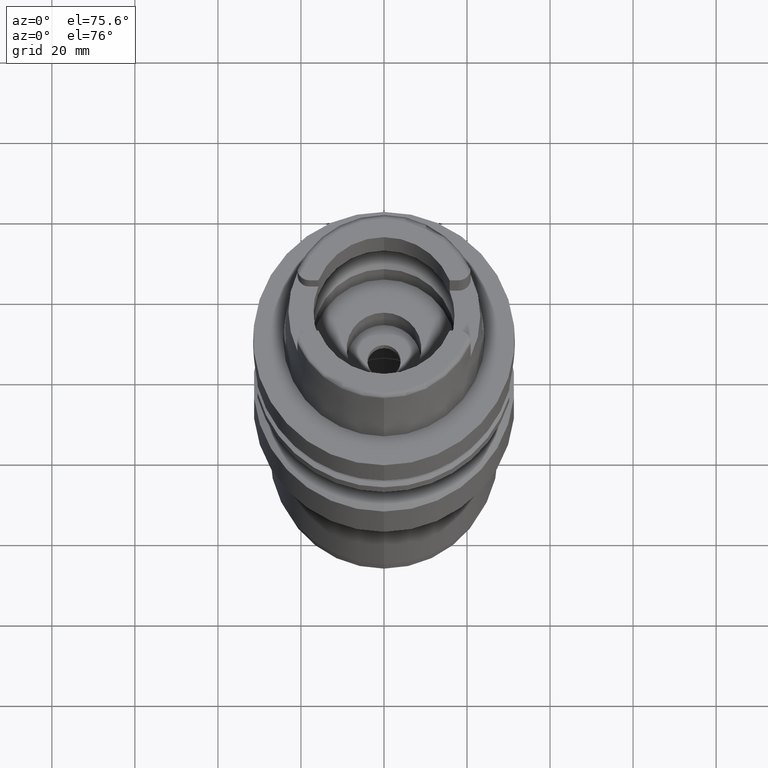
[diagram: clean part render]
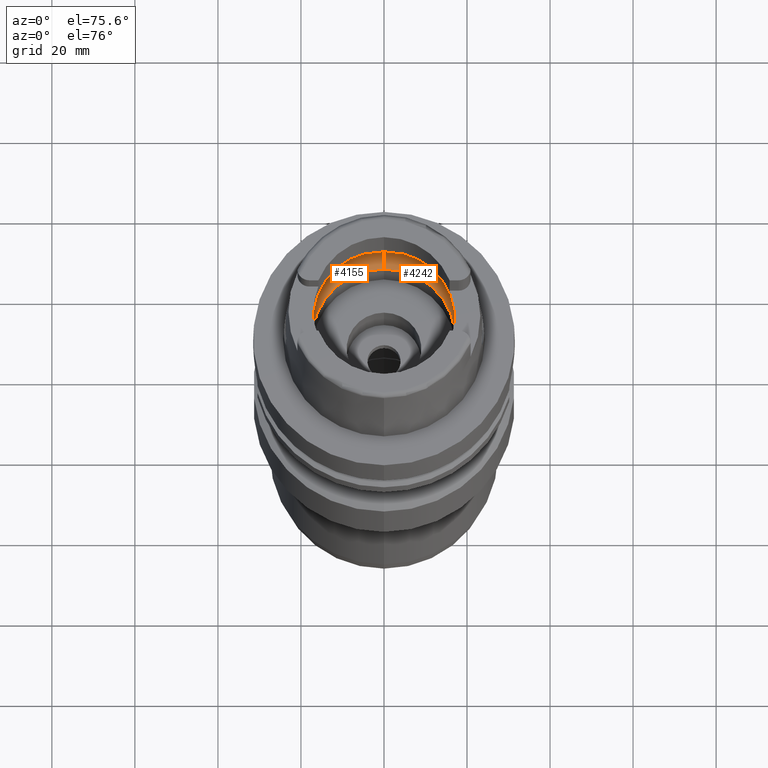
[diagram: same view with one multi-face feature highlighted, each face labeled with its STEP entity id]
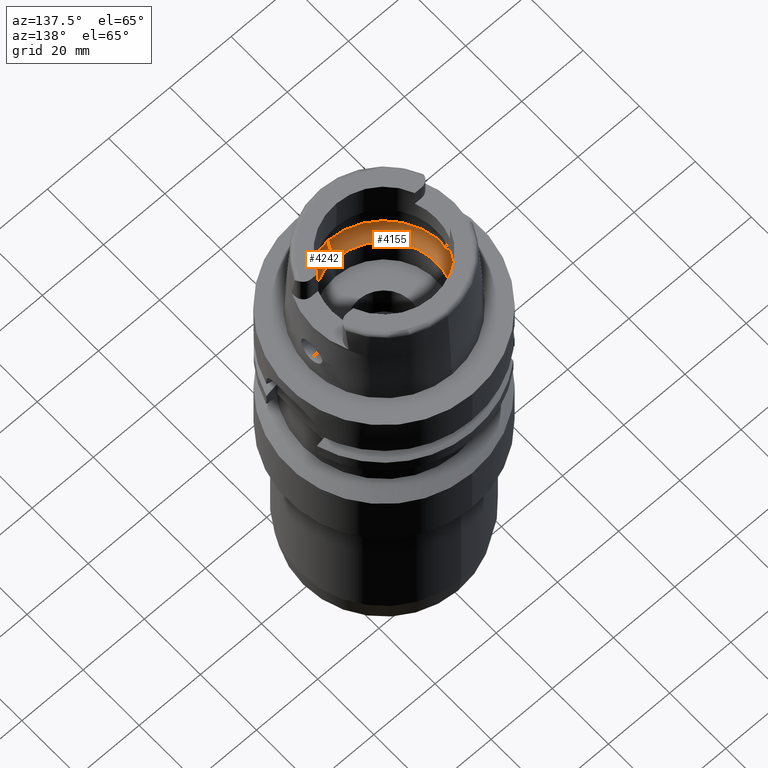
[diagram: same view with one multi-face feature highlighted, each face labeled with its STEP entity id]
A machine part, auxiliary view. The highlighted faces form ONE feature: a constant-radius fillet chain: 2 tangent blend faces with common blend radius 8 mm. The faces share edges in the B-rep.
A second angle (auxiliary view) of the same feature is appended — it is thin or edge-on in the first view.
Their STEP definitions:
[1] entity #4242 (Torus):
#2088=CARTESIAN_POINT('',(0.E0,-1.2E1,6.186348233825E0));
#2089=DIRECTION('',(-1.E0,0.E0,0.E0));
#2090=DIRECTION('',(0.E0,-6.5625E-1,-7.545435292281E-1));
#2091=AXIS2_PLACEMENT_3D('',#2088,#2089,#2090);
#2150=CARTESIAN_POINT('',(1.984575864666E1,-2.479085262490E0,6.186348233825E0));
#2177=CARTESIAN_POINT('',(1.984575864666E1,2.479085262491E0,6.186348233825E0));
#2196=CARTESIAN_POINT('',(1.994501428476E1,0.E0,5.25E0));
#2197=CARTESIAN_POINT('',(1.994501428476E1,-3.022957634976E-1,5.25E0));
#2198=CARTESIAN_POINT('',(1.994018609231E1,-9.060475314815E-1,
5.323296491821E0));
#2199=CARTESIAN_POINT('',(1.991331551588E1,-1.759138835860E0,5.647061009448E0));
#2200=CARTESIAN_POINT('',(1.987369612173E1,-2.255438098809E0,5.989294570630E0));
#2201=CARTESIAN_POINT('',(1.984575864666E1,-2.479085262490E0,6.186348233825E0));
#2206=CARTESIAN_POINT('',(0.E0,1.300407714777E-14,6.186348233825E0));
#2207=DIRECTION('',(0.E0,0.E0,-1.E0));
#2208=DIRECTION('',(9.922879323328E-1,-1.239542631245E-1,0.E0));
#2209=AXIS2_PLACEMENT_3D('',#2206,#2207,#2208);
#2214=CARTESIAN_POINT('',(0.E0,1.300407714777E-14,1.500000000001E-1));
#2215=DIRECTION('',(0.E0,0.E0,1.E0));
#2216=DIRECTION('',(0.E0,-1.E0,0.E0));
#2217=AXIS2_PLACEMENT_3D('',#2214,#2215,#2216);
#2222=CARTESIAN_POINT('',(0.E0,1.2E1,6.186348233825E0));
#2223=DIRECTION('',(1.E0,0.E0,0.E0));
#2224=DIRECTION('',(0.E0,6.5625E-1,-7.545435292281E-1));
#2225=AXIS2_PLACEMENT_3D('',#2222,#2223,#2224);
#2230=CARTESIAN_POINT('',(0.E0,1.300407714777E-14,6.186348233825E0));
#2231=DIRECTION('',(0.E0,0.E0,-1.E0));
#2232=DIRECTION('',(0.E0,1.E0,0.E0));
#2233=AXIS2_PLACEMENT_3D('',#2230,#2231,#2232);
#2238=CARTESIAN_POINT('',(1.984575864666E1,2.479085262491E0,6.186348233825E0));
#2239=CARTESIAN_POINT('',(1.987369680400E1,2.255432637066E0,5.989289758333E0));
#2240=CARTESIAN_POINT('',(1.991331632260E1,1.759123771410E0,5.647052685217E0));
#2241=CARTESIAN_POINT('',(1.994018625232E1,9.060341850576E-1,5.323293916087E0));
#2242=CARTESIAN_POINT('',(1.994501428476E1,3.022900410302E-1,5.25E0));
#2243=CARTESIAN_POINT('',(1.994501428476E1,0.E0,5.25E0));
#2547=CARTESIAN_POINT('',(0.E0,1.725E1,1.5E-1));
#2548=VERTEX_POINT('',#2547);
#2549=CARTESIAN_POINT('',(0.E0,-1.725E1,1.500000000001E-1));
#2550=VERTEX_POINT('',#2549);
#2554=CARTESIAN_POINT('',(0.E0,2.E1,6.186348233825E0));
#2555=VERTEX_POINT('',#2554);
#2556=CARTESIAN_POINT('',(0.E0,-2.E1,6.186348233825E0));
#2557=VERTEX_POINT('',#2556);
#2558=VERTEX_POINT('',#2150);
#2560=VERTEX_POINT('',#2196);
#2562=VERTEX_POINT('',#2177);
#4227=CARTESIAN_POINT('',(0.E0,1.300407714777E-14,6.186348233825E0));
#4228=DIRECTION('',(0.E0,0.E0,-1.E0));
#4229=DIRECTION('',(0.E0,-1.E0,0.E0));
#4230=AXIS2_PLACEMENT_3D('',#4227,#4228,#4229);
#4231=TOROIDAL_SURFACE('',#4230,1.2E1,8.E0);
#4232=ORIENTED_EDGE('',*,*,#4217,.T.);
#4233=ORIENTED_EDGE('',*,*,#4206,.T.);
#4234=ORIENTED_EDGE('',*,*,#4149,.F.);
#4235=ORIENTED_EDGE('',*,*,#4114,.T.);
#4236=ORIENTED_EDGE('',*,*,#4146,.T.);
#4237=ORIENTED_EDGE('',*,*,#4200,.T.);
#4239=ORIENTED_EDGE('',*,*,#4238,.T.);
#4240=EDGE_LOOP('',(#4232,#4233,#4234,#4235,#4236,#4237,#4239));
#4241=FACE_OUTER_BOUND('',#4240,.F.);
#2092=CIRCLE('',#2091,8.E0);
#2202=B_SPLINE_CURVE_WITH_KNOTS('',3,(#2196,#2197,#2198,#2199,#2200,#2201),
.UNSPECIFIED.,.F.,.F.,(4,1,1,4),(0.E0,3.333333333333E-1,6.666666666667E-1,1.E0),
.UNSPECIFIED.);
#2210=CIRCLE('',#2209,2.E1);
#2218=CIRCLE('',#2217,1.725E1);
#2226=CIRCLE('',#2225,8.E0);
#2234=CIRCLE('',#2233,2.E1);
#2244=B_SPLINE_CURVE_WITH_KNOTS('',3,(#2238,#2239,#2240,#2241,#2242,#2243),
.UNSPECIFIED.,.F.,.F.,(4,1,1,4),(0.E0,3.333333333333E-1,6.666666666667E-1,1.E0),
.UNSPECIFIED.);
#4114=EDGE_CURVE('',#2550,#2548,#2218,.T.);
#4146=EDGE_CURVE('',#2548,#2555,#2226,.T.);
#4149=EDGE_CURVE('',#2550,#2557,#2092,.T.);
#4200=EDGE_CURVE('',#2555,#2562,#2234,.T.);
#4206=EDGE_CURVE('',#2558,#2557,#2210,.T.);
#4217=EDGE_CURVE('',#2560,#2558,#2202,.T.);
#4238=EDGE_CURVE('',#2562,#2560,#2244,.T.);
#4242=ADVANCED_FACE('',(#4241),#4231,.F.);
[2] entity #4155 (Torus):
#2052=CARTESIAN_POINT('',(-1.984575864666E1,-2.479085262491E0,
6.186348233825E0));
#2053=CARTESIAN_POINT('',(-1.987369634311E1,-2.255436326615E0,
5.989293009164E0));
#2054=CARTESIAN_POINT('',(-1.991331580426E1,-1.759133995487E0,
5.647058118866E0));
#2055=CARTESIAN_POINT('',(-1.994018620523E1,-9.060401952308E-1,
5.323294831436E0));
#2056=CARTESIAN_POINT('',(-1.994501428476E1,-3.022925675387E-1,5.25E0));
#2057=CARTESIAN_POINT('',(-1.994501428476E1,0.E0,5.25E0));
#2062=CARTESIAN_POINT('',(-1.994501428476E1,0.E0,5.25E0));
#2063=CARTESIAN_POINT('',(-1.994501428476E1,3.022932630144E-1,5.25E0));
#2064=CARTESIAN_POINT('',(-1.994018613819E1,9.060415796180E-1,
5.323295592682E0));
#2065=CARTESIAN_POINT('',(-1.991331603386E1,1.759128607705E0,5.647055577913E0));
#2066=CARTESIAN_POINT('',(-1.987369658276E1,2.255434408128E0,5.989291318801E0));
#2067=CARTESIAN_POINT('',(-1.984575864666E1,2.479085262491E0,6.186348233825E0));
#2072=CARTESIAN_POINT('',(0.E0,1.300407714777E-14,6.186348233825E0));
#2073=DIRECTION('',(0.E0,0.E0,-1.E0));
#2074=DIRECTION('',(-9.922879323328E-1,1.239542631245E-1,0.E0));
#2075=AXIS2_PLACEMENT_3D('',#2072,#2073,#2074);
#2080=CARTESIAN_POINT('',(0.E0,1.300407714777E-14,1.500000000001E-1));
#2081=DIRECTION('',(0.E0,0.E0,1.E0));
#2082=DIRECTION('',(0.E0,1.E0,0.E0));
#2083=AXIS2_PLACEMENT_3D('',#2080,#2081,#2082);
#2088=CARTESIAN_POINT('',(0.E0,-1.2E1,6.186348233825E0));
#2089=DIRECTION('',(-1.E0,0.E0,0.E0));
#2090=DIRECTION('',(0.E0,-6.5625E-1,-7.545435292281E-1));
#2091=AXIS2_PLACEMENT_3D('',#2088,#2089,#2090);
#2096=CARTESIAN_POINT('',(0.E0,1.300407714777E-14,6.186348233825E0));
#2097=DIRECTION('',(0.E0,0.E0,-1.E0));
#2098=DIRECTION('',(0.E0,-1.E0,0.E0));
#2099=AXIS2_PLACEMENT_3D('',#2096,#2097,#2098);
#2222=CARTESIAN_POINT('',(0.E0,1.2E1,6.186348233825E0));
#2223=DIRECTION('',(1.E0,0.E0,0.E0));
#2224=DIRECTION('',(0.E0,6.5625E-1,-7.545435292281E-1));
#2225=AXIS2_PLACEMENT_3D('',#2222,#2223,#2224);
#2547=CARTESIAN_POINT('',(0.E0,1.725E1,1.5E-1));
#2548=VERTEX_POINT('',#2547);
#2549=CARTESIAN_POINT('',(0.E0,-1.725E1,1.500000000001E-1));
#2550=VERTEX_POINT('',#2549);
#2551=VERTEX_POINT('',#2052);
#2552=VERTEX_POINT('',#2057);
#2553=VERTEX_POINT('',#2067);
#2554=CARTESIAN_POINT('',(0.E0,2.E1,6.186348233825E0));
#2555=VERTEX_POINT('',#2554);
#2556=CARTESIAN_POINT('',(0.E0,-2.E1,6.186348233825E0));
#2557=VERTEX_POINT('',#2556);
#4135=CARTESIAN_POINT('',(0.E0,1.300407714777E-14,6.186348233825E0));
#4136=DIRECTION('',(0.E0,0.E0,-1.E0));
#4137=DIRECTION('',(0.E0,-1.E0,0.E0));
#4138=AXIS2_PLACEMENT_3D('',#4135,#4136,#4137);
#4139=TOROIDAL_SURFACE('',#4138,1.2E1,8.E0);
#4141=ORIENTED_EDGE('',*,*,#4140,.T.);
#4143=ORIENTED_EDGE('',*,*,#4142,.T.);
#4145=ORIENTED_EDGE('',*,*,#4144,.T.);
#4147=ORIENTED_EDGE('',*,*,#4146,.F.);
#4148=ORIENTED_EDGE('',*,*,#4130,.T.);
#4150=ORIENTED_EDGE('',*,*,#4149,.T.);
#4152=ORIENTED_EDGE('',*,*,#4151,.T.);
#4153=EDGE_LOOP('',(#4141,#4143,#4145,#4147,#4148,#4150,#4152));
#4154=FACE_OUTER_BOUND('',#4153,.F.);
#2058=B_SPLINE_CURVE_WITH_KNOTS('',3,(#2052,#2053,#2054,#2055,#2056,#2057),
.UNSPECIFIED.,.F.,.F.,(4,1,1,4),(0.E0,3.333333333333E-1,6.666666666667E-1,1.E0),
.UNSPECIFIED.);
#2068=B_SPLINE_CURVE_WITH_KNOTS('',3,(#2062,#2063,#2064,#2065,#2066,#2067),
.UNSPECIFIED.,.F.,.F.,(4,1,1,4),(0.E0,3.333333333333E-1,6.666666666667E-1,1.E0),
.UNSPECIFIED.);
#2076=CIRCLE('',#2075,2.E1);
#2084=CIRCLE('',#2083,1.725E1);
#2092=CIRCLE('',#2091,8.E0);
#2100=CIRCLE('',#2099,2.E1);
#2226=CIRCLE('',#2225,8.E0);
#4130=EDGE_CURVE('',#2548,#2550,#2084,.T.);
#4140=EDGE_CURVE('',#2551,#2552,#2058,.T.);
#4142=EDGE_CURVE('',#2552,#2553,#2068,.T.);
#4144=EDGE_CURVE('',#2553,#2555,#2076,.T.);
#4146=EDGE_CURVE('',#2548,#2555,#2226,.T.);
#4149=EDGE_CURVE('',#2550,#2557,#2092,.T.);
#4151=EDGE_CURVE('',#2557,#2551,#2100,.T.);
#4155=ADVANCED_FACE('',(#4154),#4139,.F.);